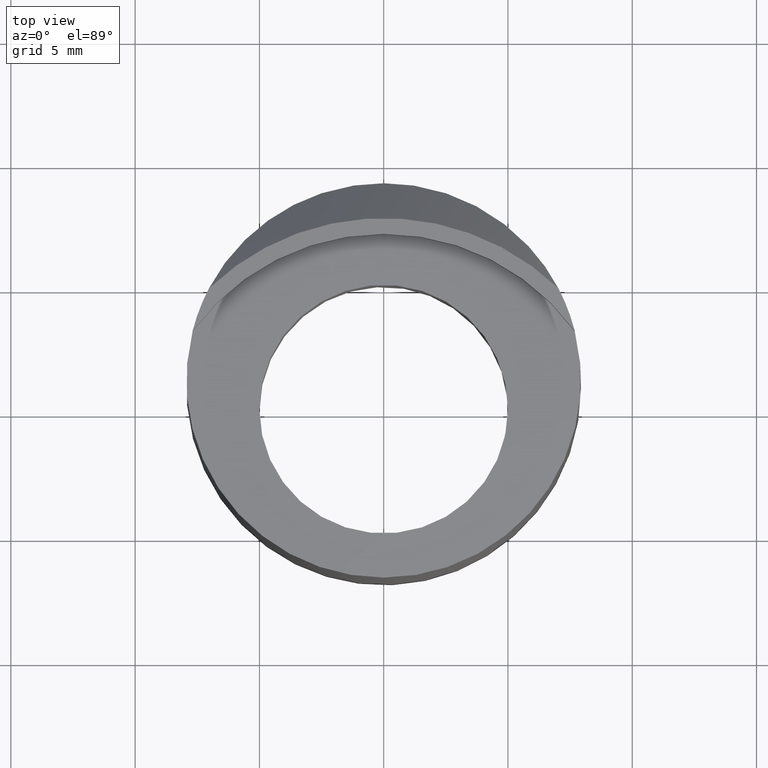
[diagram: clean part render]
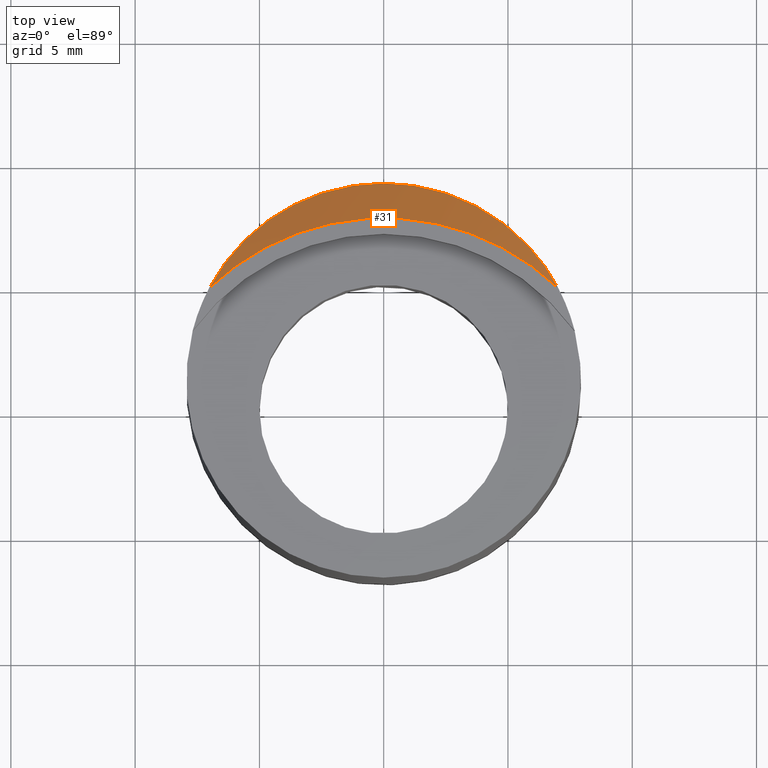
[diagram: same view with one face highlighted and labeled with its STEP entity id]
A machine part, top view. The second image highlights one B-rep face of the part: STEP entity #31.
In plain terms, the highlighted conical surface has half-angle 45 deg.
Its self-contained STEP definition (entity closure, byte-faithful):
#4 = EDGE_CURVE ( 'NONE', #220, #214, #28, .T. ) ;
#15 = CARTESIAN_POINT ( 'NONE',  ( -0.2639185556648692100, 0.2152199699562641900, 0.7411820063344279900 ) ) ;
#16 = CARTESIAN_POINT ( 'NONE',  ( -0.2767838932136466600, 0.1906744635389196800, 0.7500000000000001100 ) ) ;
#18 = CARTESIAN_POINT ( 'NONE',  ( -0.09941511264093359800, 0.3422108810394044500, 0.6988311407053969800 ) ) ;
#19 = CARTESIAN_POINT ( 'NONE',  ( -0.2092963217709726500, 0.2780903867774015500, 0.7197299492056457000 ) ) ;
#20 = CARTESIAN_POINT ( 'NONE',  ( -0.2196203082285445900, 0.2683481359285012600, 0.7229924179772816400 ) ) ;
#21 = CARTESIAN_POINT ( 'NONE',  ( -0.1874002531696883600, 0.2960753518701791400, 0.7137647165990170800 ) ) ;
#22 = CARTESIAN_POINT ( 'NONE',  ( -0.1130841271041534100, 0.3372736901040893100, 0.7004043256038181600 ) ) ;
#23 = CARTESIAN_POINT ( 'NONE',  ( -0.1393090193203537200, 0.3256973525380113500, 0.7041197478792662300 ) ) ;
#24 = CARTESIAN_POINT ( 'NONE',  ( -0.1759110791811329700, 0.3042710807239839000, 0.7110767639496367000 ) ) ;
#25 = CARTESIAN_POINT ( 'NONE',  ( -0.1518653794547868400, 0.3190819396654117100, 0.7062542649927352500 ) ) ;
#27 = CARTESIAN_POINT ( 'NONE',  ( -0.2480265516793695400, 0.2377303253298724600, 0.7333804475190042200 ) ) ;
#28 = B_SPLINE_CURVE_WITH_KNOTS ( 'NONE', 3,
 ( #16, #15, #27, #20, #19, #21, #24, #25, #23, #22, #18, #127, #89, #86, #87, #92, #90, #130, #95, #115, #106, #93, #135, #133, #110, #149, #94, #138, #113, #128 ),
 .UNSPECIFIED., .F., .F.,
 ( 4, 2, 2, 2, 2, 2, 2, 2, 2, 2, 2, 2, 2, 2, 4 ),
 ( 6.486295182886069500E-007, 0.002179896535405388200, 0.003269520488348935700, 0.004359144441292484000, 0.005448768394236030600, 0.006538392347179575500, 0.007628016300123122200, 0.008717640253066668800, 0.01089688815895376000, 0.01198651211189730700, 0.01307613606484085000, 0.01416576001778439500, 0.01525538397072794000, 0.01634500792367148100, 0.01743463187661502600 ),
 .UNSPECIFIED. ) ;
#31 = ADVANCED_FACE ( 'NONE', ( #253 ), #233, .T. ) ;
#52 = AXIS2_PLACEMENT_3D ( 'NONE', #112, #102, #99 ) ;
#63 = EDGE_CURVE ( 'NONE', #220, #214, #279, .T. ) ;
#79 = AXIS2_PLACEMENT_3D ( 'NONE', #201, #193, #177 ) ;
#86 = CARTESIAN_POINT ( 'NONE',  ( -0.02942585718906434000, 0.3570426406912264300, 0.6941327856468166900 ) ) ;
#87 = CARTESIAN_POINT ( 'NONE',  ( -0.01486769253461019800, 0.3580814827936573700, 0.6938058559884646700 ) ) ;
#89 = CARTESIAN_POINT ( 'NONE',  ( -0.05786213872511222100, 0.3530318435356197800, 0.6953988782048032800 ) ) ;
#90 = CARTESIAN_POINT ( 'NONE',  ( 0.05696458766030772900, 0.3542261892799814500, 0.6950149391125388700 ) ) ;
#92 = CARTESIAN_POINT ( 'NONE',  ( 0.02855312797940711200, 0.3581363225337340600, 0.6937885250939476200 ) ) ;
#93 = CARTESIAN_POINT ( 'NONE',  ( 0.1753123943739518000, 0.3046845034146523600, 0.7109409087088665000 ) ) ;
#94 = CARTESIAN_POINT ( 'NONE',  ( 0.2469634670038901600, 0.2375912590721830900, 0.7334663593087816800 ) ) ;
#95 = CARTESIAN_POINT ( 'NONE',  ( 0.1123229643740640000, 0.3375639856250709500, 0.7003113484474908800 ) ) ;
#99 = DIRECTION ( 'NONE',  ( -1.000000000000000000, 0.0000000000000000000, 0.0000000000000000000 ) ) ;
#102 = DIRECTION ( 'NONE',  ( -0.0000000000000000000, 0.0000000000000000000, -1.000000000000000000 ) ) ;
#106 = CARTESIAN_POINT ( 'NONE',  ( 0.1510245301884645700, 0.3195539709768076000, 0.7061009773158929400 ) ) ;
#110 = CARTESIAN_POINT ( 'NONE',  ( 0.2190499860789380200, 0.2689126451511062400, 0.7228018721960508500 ) ) ;
#111 = CARTESIAN_POINT ( 'NONE',  ( -0.2767838932136466600, 0.1906744635389196800, 0.7500000000000001100 ) ) ;
#112 = CARTESIAN_POINT ( 'NONE',  ( 0.0000000000000000000, -0.09810002148200000500, 0.7500000000000001100 ) ) ;
#113 = CARTESIAN_POINT ( 'NONE',  ( 0.2703509124914769100, 0.2029503339649999000, 0.7455890775983956600 ) ) ;
#115 = CARTESIAN_POINT ( 'NONE',  ( 0.1384264058692225900, 0.3261308864110156700, 0.7039797748760724400 ) ) ;
#127 = CARTESIAN_POINT ( 'NONE',  ( -0.07185953313661697100, 0.3500628383007320900, 0.6963371016701023200 ) ) ;
#128 = CARTESIAN_POINT ( 'NONE',  ( 0.2767862887898799300, 0.1906721674135478400, 0.7500000000000001100 ) ) ;
#130 = CARTESIAN_POINT ( 'NONE',  ( 0.09877519526621123000, 0.3424324890564950400, 0.6987602969720730900 ) ) ;
#131 = CARTESIAN_POINT ( 'NONE',  ( 0.2767862887898799300, 0.1906721674135478400, 0.7500000000000001100 ) ) ;
#133 = CARTESIAN_POINT ( 'NONE',  ( 0.2088432850167535600, 0.2784943385198047600, 0.7195946292584773900 ) ) ;
#135 = CARTESIAN_POINT ( 'NONE',  ( 0.1870223553326164600, 0.2963546682140423300, 0.7136723516635438100 ) ) ;
#138 = CARTESIAN_POINT ( 'NONE',  ( 0.2631053243699658700, 0.2147957581645392700, 0.7414062346094290000 ) ) ;
#149 = CARTESIAN_POINT ( 'NONE',  ( 0.2380910334008283200, 0.2484894179361305200, 0.7297279134965609600 ) ) ;
#177 = DIRECTION ( 'NONE',  ( -1.000000000000000000, 0.0000000000000000000, 0.0000000000000000000 ) ) ;
#193 = DIRECTION ( 'NONE',  ( -0.0000000000000000000, 0.0000000000000000000, -1.000000000000000000 ) ) ;
#201 = CARTESIAN_POINT ( 'NONE',  ( 0.0000000000000000000, -0.09810002148200000500, 0.7500000000000001100 ) ) ;
#214 = VERTEX_POINT ( 'NONE', #131 ) ;
#220 = VERTEX_POINT ( 'NONE', #111 ) ;
#221 = ORIENTED_EDGE ( 'NONE', *, *, #63, .T. ) ;
#225 = EDGE_LOOP ( 'NONE', ( #221, #263 ) ) ;
#233 = CONICAL_SURFACE ( 'NONE', #79, 0.4000000334269995200, 0.7853981633974531600 ) ;
#253 = FACE_OUTER_BOUND ( 'NONE', #225, .T. ) ;
#263 = ORIENTED_EDGE ( 'NONE', *, *, #4, .F. ) ;
#279 = CIRCLE ( 'NONE', #52, 0.4000000334269995200 ) ;